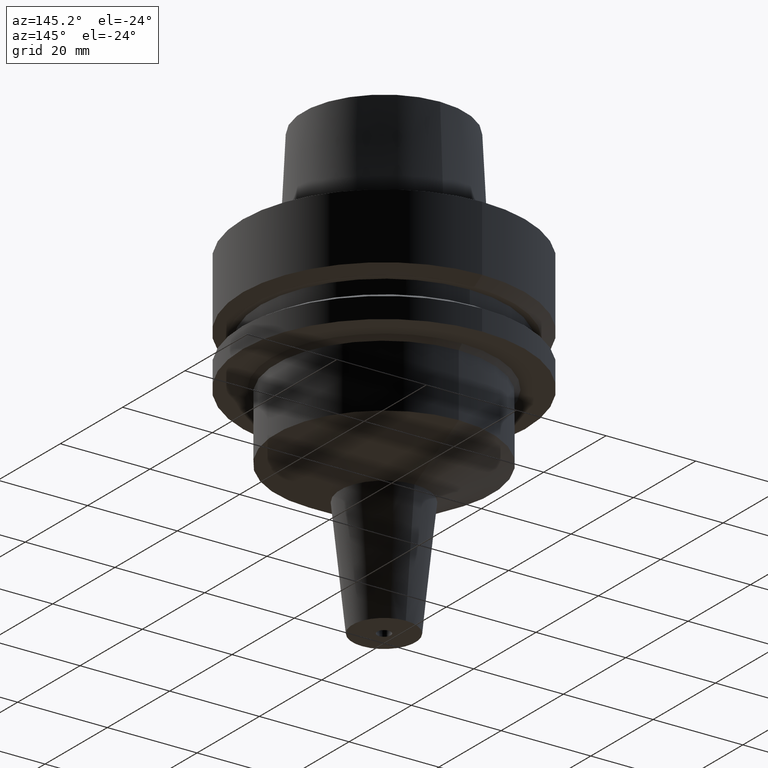
[diagram: clean part render]
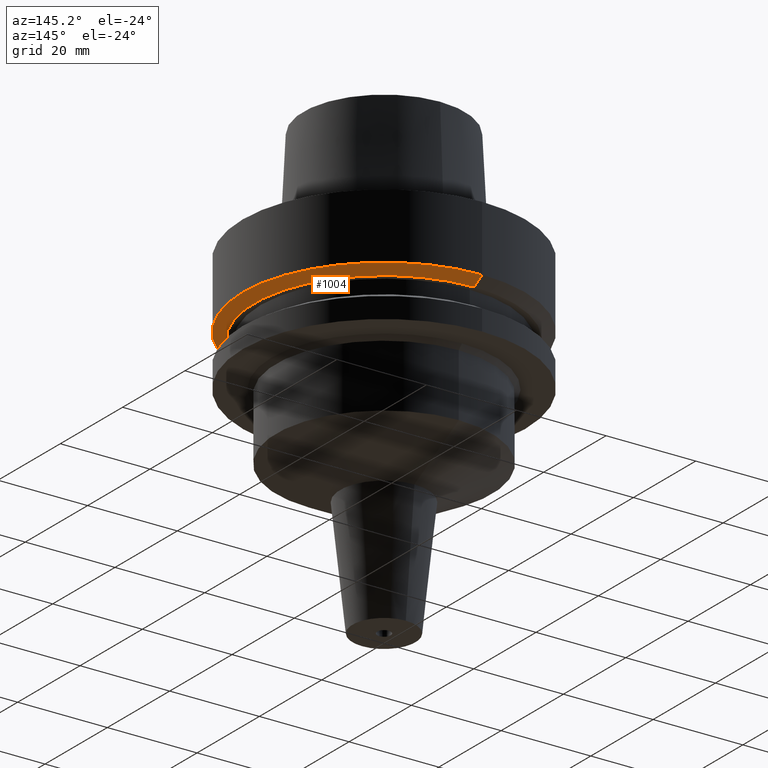
[diagram: same view with one face highlighted and labeled with its STEP entity id]
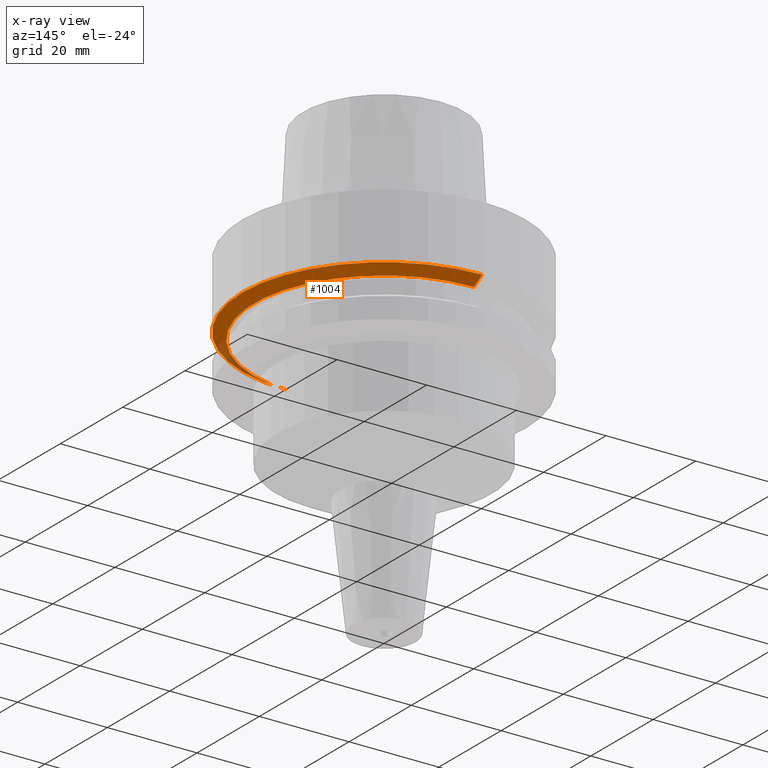
[diagram: x-ray of the same camera — body ghosted, the highlighted face saturated]
A machine part, auxiliary view. The second image highlights one B-rep face of the part: STEP entity #1004.
The next image is the same camera in x-ray: the body ghosted, the highlighted face saturated — about 6% of this face is hidden behind the body in this view.
In plain terms, the highlighted conical surface has half-angle 60 deg.
Its self-contained STEP definition (entity closure, byte-faithful):
#110=DIRECTION('',(0.E0,-8.660254037844E-1,-5.000000000001E-1));
#111=VECTOR('',#110,3.004998149520E0);
#112=CARTESIAN_POINT('',(0.E0,3.15E1,-1.462250092524E1));
#113=LINE('',#112,#111);
#117=CARTESIAN_POINT('',(0.E0,0.E0,-1.462250092524E1));
#118=DIRECTION('',(0.E0,0.E0,1.E0));
#119=DIRECTION('',(0.E0,-1.E0,0.E0));
#120=AXIS2_PLACEMENT_3D('',#117,#118,#119);
#133=DIRECTION('',(0.E0,8.660254037844E-1,-5.000000000001E-1));
#134=VECTOR('',#133,3.004998149520E0);
#135=CARTESIAN_POINT('',(0.E0,-3.15E1,-1.462250092524E1));
#136=LINE('',#135,#134);
#140=CARTESIAN_POINT('',(0.E0,0.E0,-1.6125E1));
#141=DIRECTION('',(0.E0,0.E0,1.E0));
#142=DIRECTION('',(0.E0,-1.E0,0.E0));
#143=AXIS2_PLACEMENT_3D('',#140,#141,#142);
#884=CARTESIAN_POINT('',(0.E0,-2.889759526419E1,-1.6125E1));
#885=CARTESIAN_POINT('',(0.E0,2.889759526419E1,-1.6125E1));
#886=VERTEX_POINT('',#884);
#887=VERTEX_POINT('',#885);
#888=CARTESIAN_POINT('',(0.E0,3.15E1,-1.462250092524E1));
#889=VERTEX_POINT('',#888);
#890=CARTESIAN_POINT('',(0.E0,-3.15E1,-1.462250092524E1));
#891=VERTEX_POINT('',#890);
#990=CARTESIAN_POINT('',(0.E0,0.E0,-1.537375046262E1));
#991=DIRECTION('',(0.E0,0.E0,1.E0));
#992=DIRECTION('',(0.E0,1.E0,0.E0));
#993=AXIS2_PLACEMENT_3D('',#990,#991,#992);
#994=CONICAL_SURFACE('',#993,3.019879763210E1,6.E1);
#996=ORIENTED_EDGE('',*,*,#995,.T.);
#998=ORIENTED_EDGE('',*,*,#997,.F.);
#1000=ORIENTED_EDGE('',*,*,#999,.F.);
#1001=ORIENTED_EDGE('',*,*,#983,.T.);
#1002=EDGE_LOOP('',(#996,#998,#1000,#1001));
#1003=FACE_OUTER_BOUND('',#1002,.F.);
#121=CIRCLE('',#120,3.15E1);
#144=CIRCLE('',#143,2.889759526419E1);
#983=EDGE_CURVE('',#891,#889,#121,.T.);
#995=EDGE_CURVE('',#889,#887,#113,.T.);
#997=EDGE_CURVE('',#886,#887,#144,.T.);
#999=EDGE_CURVE('',#891,#886,#136,.T.);
#1004=ADVANCED_FACE('',(#1003),#994,.T.);